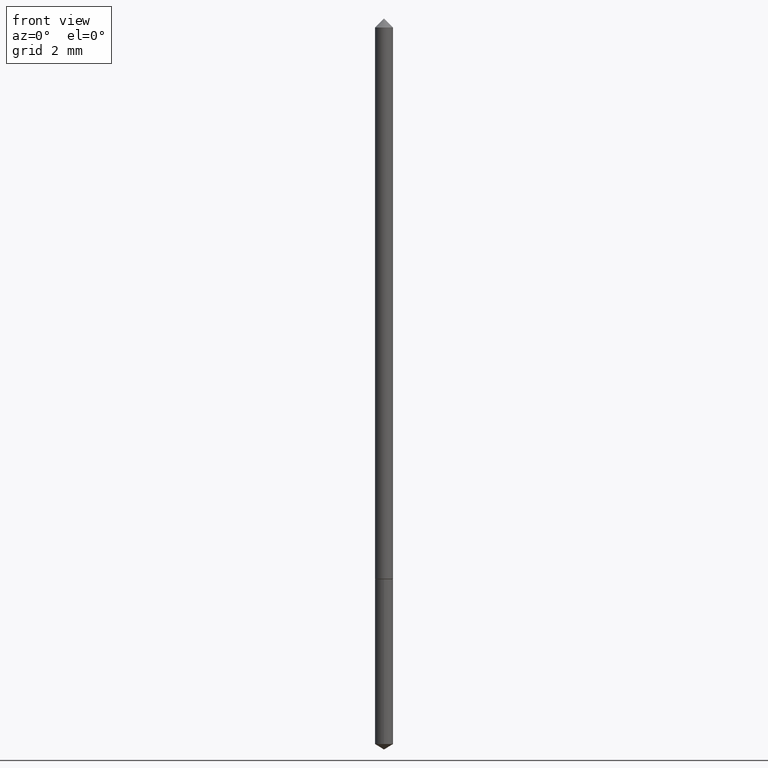
[diagram: clean part render]
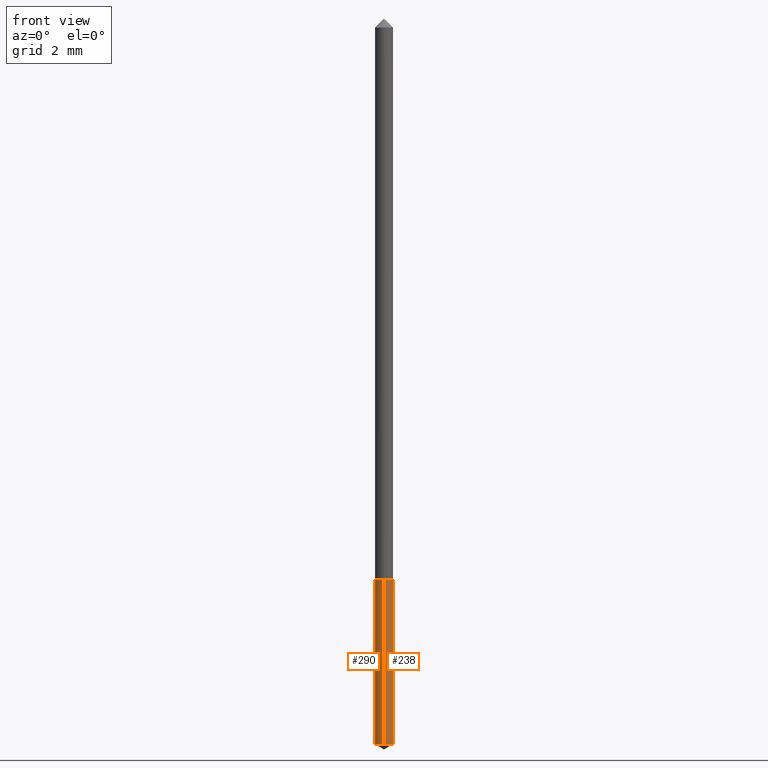
[diagram: same view with one multi-face feature highlighted, each face labeled with its STEP entity id]
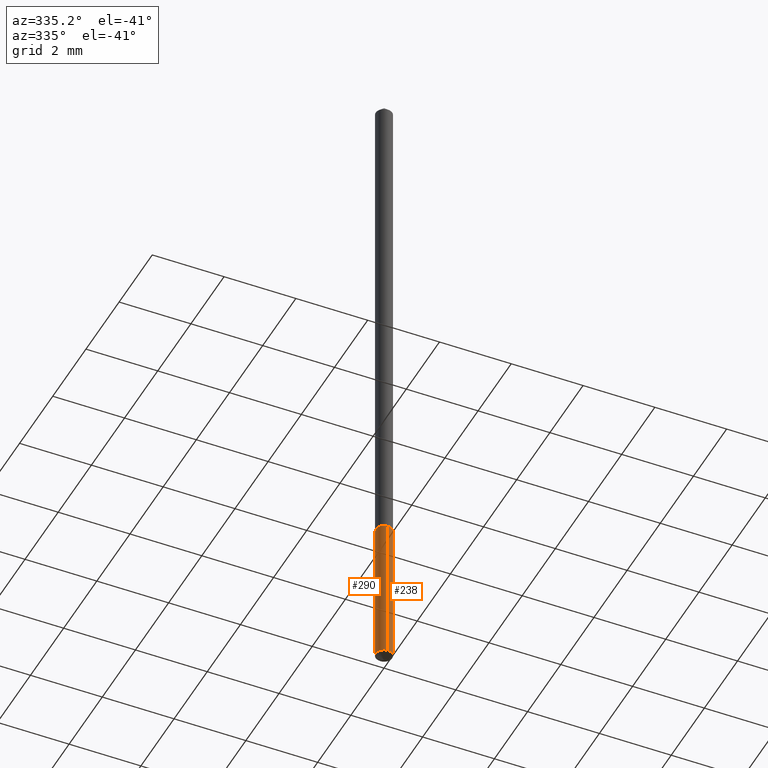
[diagram: same view with one multi-face feature highlighted, each face labeled with its STEP entity id]
A machine part, front view. The highlighted faces form ONE feature: a constant-radius fillet chain: 2 tangent blend faces with common blend radius 0.2286 mm. The faces share edges in the B-rep.
A second angle (auxiliary view) of the same feature is appended — it is thin or edge-on in the first view.
Their STEP definitions:
[1] entity #290 (Cylinder):
#6 = DIRECTION ( 'NONE',  ( -6.982962677686265133E-15, -1.000000000000000000, 0.000000000000000000 ) ) ;
#23 = ORIENTED_EDGE ( 'NONE', *, *, #208, .F. ) ;
#42 = DIRECTION ( 'NONE',  ( -6.982962677686265133E-15, -1.000000000000000000, 0.000000000000000000 ) ) ;
#50 = VERTEX_POINT ( 'NONE', #337 ) ;
#62 = CARTESIAN_POINT ( 'NONE',  ( 1.820894923513988094E-29, -2.599704482255101683E-15, -0.7445922544287519873 ) ) ;
#74 = VECTOR ( 'NONE', #352, 39.37007874015748143 ) ;
#87 = CYLINDRICAL_SURFACE ( 'NONE', #187, 0.008999999999999999320 ) ;
#89 = LINE ( 'NONE', #346, #74 ) ;
#90 = VERTEX_POINT ( 'NONE', #228 ) ;
#105 = EDGE_CURVE ( 'NONE', #248, #90, #335, .T. ) ;
#117 = CARTESIAN_POINT ( 'NONE',  ( 1.419594641990472061E-29, -2.026804917198446107E-15, -0.5805000000000000160 ) ) ;
#118 = EDGE_CURVE ( 'NONE', #248, #50, #209, .T. ) ;
#138 = CIRCLE ( 'NONE', #246, 0.008999999999999999320 ) ;
#140 = DIRECTION ( 'NONE',  ( -2.445577232883705926E-29, 3.491326065639529727E-15, 1.000000000000000000 ) ) ;
#149 = ORIENTED_EDGE ( 'NONE', *, *, #173, .T. ) ;
#173 = EDGE_CURVE ( 'NONE', #50, #325, #89, .T. ) ;
#175 = CARTESIAN_POINT ( 'NONE',  ( -6.284666409916219695E-17, -0.009000000000002025477, -0.5805000000000000160 ) ) ;
#179 = AXIS2_PLACEMENT_3D ( 'NONE', #62, #140, #6 ) ;
#187 = AXIS2_PLACEMENT_3D ( 'NONE', #354, #318, #42 ) ;
#193 = CARTESIAN_POINT ( 'NONE',  ( 6.394884621842319907E-17, 0.008999999999997973163, -0.5805000000000000160 ) ) ;
#208 = EDGE_CURVE ( 'NONE', #90, #325, #138, .T. ) ;
#209 = CIRCLE ( 'NONE', #179, 0.009000000000000001055 ) ;
#213 = DIRECTION ( 'NONE',  ( -2.445577232883705926E-29, 3.491326065639529727E-15, 1.000000000000000000 ) ) ;
#228 = CARTESIAN_POINT ( 'NONE',  ( 6.394884621842725431E-17, 0.008999999999997973163, -0.5805000000000000160 ) ) ;
#242 = FACE_OUTER_BOUND ( 'NONE', #294, .T. ) ;
#246 = AXIS2_PLACEMENT_3D ( 'NONE', #117, #213, #317 ) ;
#248 = VERTEX_POINT ( 'NONE', #288 ) ;
#288 = CARTESIAN_POINT ( 'NONE',  ( 6.394884621842722965E-17, 0.008999999999997400704, -0.7445922544287519873 ) ) ;
#290 = ADVANCED_FACE ( 'NONE', ( #242 ), #87, .T. ) ;
#294 = EDGE_LOOP ( 'NONE', ( #353, #323, #149, #23 ) ) ;
#301 = VECTOR ( 'NONE', #305, 39.37007874015748143 ) ;
#305 = DIRECTION ( 'NONE',  ( -2.445577232883705926E-29, 3.491326065639529727E-15, 1.000000000000000000 ) ) ;
#317 = DIRECTION ( 'NONE',  ( -6.982962677686265133E-15, -1.000000000000000000, 0.000000000000000000 ) ) ;
#318 = DIRECTION ( 'NONE',  ( -2.445577232883705926E-29, 3.491326065639529727E-15, 1.000000000000000000 ) ) ;
#323 = ORIENTED_EDGE ( 'NONE', *, *, #118, .T. ) ;
#325 = VERTEX_POINT ( 'NONE', #175 ) ;
#335 = LINE ( 'NONE', #193, #301 ) ;
#337 = CARTESIAN_POINT ( 'NONE',  ( -6.284666409915819102E-17, -0.009000000000002601405, -0.7445922544287519873 ) ) ;
#346 = CARTESIAN_POINT ( 'NONE',  ( -6.284666409916219695E-17, -0.009000000000002025477, -0.5805000000000000160 ) ) ;
#352 = DIRECTION ( 'NONE',  ( -2.445577232883705926E-29, 3.491326065639529727E-15, 1.000000000000000000 ) ) ;
#353 = ORIENTED_EDGE ( 'NONE', *, *, #105, .F. ) ;
#354 = CARTESIAN_POINT ( 'NONE',  ( 1.419594641990472061E-29, -2.026804917198446107E-15, -0.5805000000000000160 ) ) ;
[2] entity #238 (Cylinder):
#19 = DIRECTION ( 'NONE',  ( -6.982962677686265133E-15, -1.000000000000000000, 0.000000000000000000 ) ) ;
#41 = DIRECTION ( 'NONE',  ( -6.982962677686265133E-15, -1.000000000000000000, 0.000000000000000000 ) ) ;
#50 = VERTEX_POINT ( 'NONE', #337 ) ;
#61 = ORIENTED_EDGE ( 'NONE', *, *, #226, .T. ) ;
#67 = DIRECTION ( 'NONE',  ( -6.982962677686265133E-15, -1.000000000000000000, 0.000000000000000000 ) ) ;
#74 = VECTOR ( 'NONE', #352, 39.37007874015748143 ) ;
#85 = ORIENTED_EDGE ( 'NONE', *, *, #173, .F. ) ;
#89 = LINE ( 'NONE', #346, #74 ) ;
#90 = VERTEX_POINT ( 'NONE', #228 ) ;
#94 = EDGE_LOOP ( 'NONE', ( #61, #262, #165, #85 ) ) ;
#97 = CARTESIAN_POINT ( 'NONE',  ( 1.419594641990472061E-29, -2.026804917198446107E-15, -0.5805000000000000160 ) ) ;
#99 = CYLINDRICAL_SURFACE ( 'NONE', #363, 0.008999999999999999320 ) ;
#103 = DIRECTION ( 'NONE',  ( -2.445577232883705926E-29, 3.491326065639529727E-15, 1.000000000000000000 ) ) ;
#105 = EDGE_CURVE ( 'NONE', #248, #90, #335, .T. ) ;
#116 = DIRECTION ( 'NONE',  ( -2.445577232883705926E-29, 3.491326065639529727E-15, 1.000000000000000000 ) ) ;
#139 = AXIS2_PLACEMENT_3D ( 'NONE', #97, #240, #67 ) ;
#153 = CARTESIAN_POINT ( 'NONE',  ( 1.419594641990472061E-29, -2.026804917198446107E-15, -0.5805000000000000160 ) ) ;
#157 = CARTESIAN_POINT ( 'NONE',  ( 1.820894923513988094E-29, -2.599704482255101683E-15, -0.7445922544287519873 ) ) ;
#165 = ORIENTED_EDGE ( 'NONE', *, *, #299, .F. ) ;
#170 = AXIS2_PLACEMENT_3D ( 'NONE', #157, #103, #41 ) ;
#173 = EDGE_CURVE ( 'NONE', #50, #325, #89, .T. ) ;
#175 = CARTESIAN_POINT ( 'NONE',  ( -6.284666409916219695E-17, -0.009000000000002025477, -0.5805000000000000160 ) ) ;
#193 = CARTESIAN_POINT ( 'NONE',  ( 6.394884621842319907E-17, 0.008999999999997973163, -0.5805000000000000160 ) ) ;
#226 = EDGE_CURVE ( 'NONE', #50, #248, #327, .T. ) ;
#228 = CARTESIAN_POINT ( 'NONE',  ( 6.394884621842725431E-17, 0.008999999999997973163, -0.5805000000000000160 ) ) ;
#238 = ADVANCED_FACE ( 'NONE', ( #268 ), #99, .T. ) ;
#240 = DIRECTION ( 'NONE',  ( -2.445577232883705926E-29, 3.491326065639529727E-15, 1.000000000000000000 ) ) ;
#248 = VERTEX_POINT ( 'NONE', #288 ) ;
#262 = ORIENTED_EDGE ( 'NONE', *, *, #105, .T. ) ;
#268 = FACE_OUTER_BOUND ( 'NONE', #94, .T. ) ;
#288 = CARTESIAN_POINT ( 'NONE',  ( 6.394884621842722965E-17, 0.008999999999997400704, -0.7445922544287519873 ) ) ;
#297 = CIRCLE ( 'NONE', #139, 0.008999999999999999320 ) ;
#299 = EDGE_CURVE ( 'NONE', #325, #90, #297, .T. ) ;
#301 = VECTOR ( 'NONE', #305, 39.37007874015748143 ) ;
#305 = DIRECTION ( 'NONE',  ( -2.445577232883705926E-29, 3.491326065639529727E-15, 1.000000000000000000 ) ) ;
#325 = VERTEX_POINT ( 'NONE', #175 ) ;
#327 = CIRCLE ( 'NONE', #170, 0.009000000000000001055 ) ;
#335 = LINE ( 'NONE', #193, #301 ) ;
#337 = CARTESIAN_POINT ( 'NONE',  ( -6.284666409915819102E-17, -0.009000000000002601405, -0.7445922544287519873 ) ) ;
#346 = CARTESIAN_POINT ( 'NONE',  ( -6.284666409916219695E-17, -0.009000000000002025477, -0.5805000000000000160 ) ) ;
#352 = DIRECTION ( 'NONE',  ( -2.445577232883705926E-29, 3.491326065639529727E-15, 1.000000000000000000 ) ) ;
#363 = AXIS2_PLACEMENT_3D ( 'NONE', #153, #116, #19 ) ;